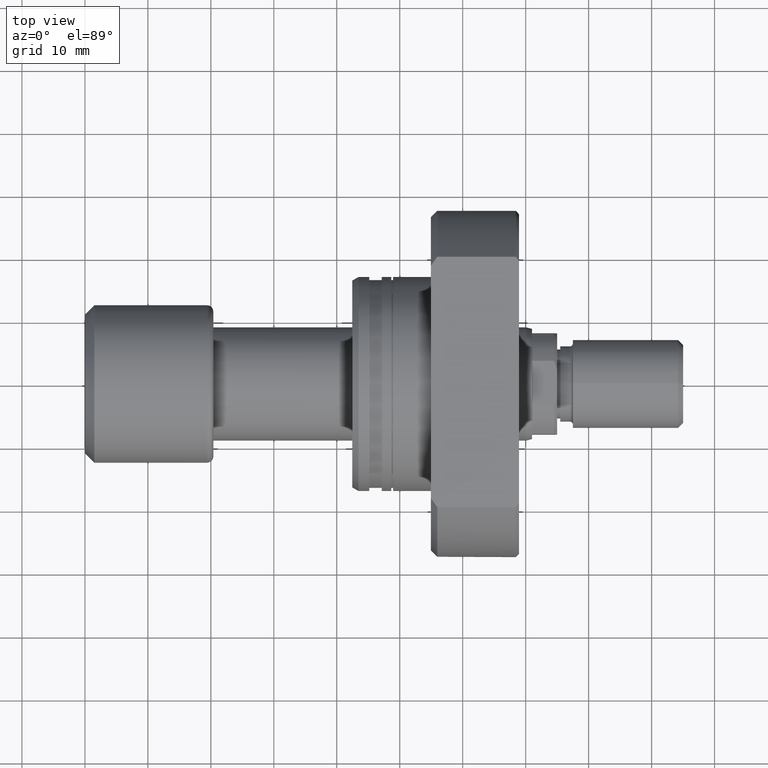
[diagram: clean part render]
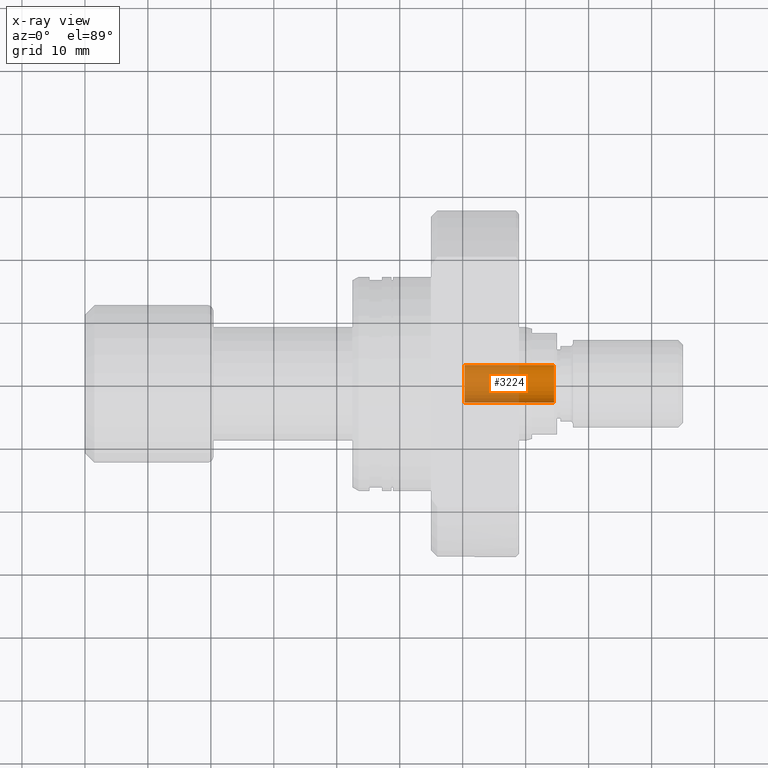
[diagram: x-ray — body ghosted, one internal face saturated and labeled with its STEP entity id]
A machine part, top view, then the same camera in x-ray: the body is ghosted and one INTERNAL B-rep face — a face not visible from any outside direction — is saturated and labeled: STEP entity #3224.
In plain terms, the highlighted cylindrical surface (edge-blend (fillet) strip) has radius 3 mm, axis along (1, -0, 0).
Its self-contained STEP definition (entity closure, byte-faithful):
#55 = CARTESIAN_POINT ( 'NONE',  ( 60.30000000000004690, 2.999999999999364508, 0.000000000000000000 ) ) ;
#75 = LINE ( 'NONE', #55, #1504 ) ;
#325 = DIRECTION ( 'NONE',  ( 1.000000000000000000, -1.657264799492254606E-14, 0.000000000000000000 ) ) ;
#326 = CARTESIAN_POINT ( 'NONE',  ( 60.29999999999994742, -3.000000000001362910, 3.673940397442505574E-16 ) ) ;
#426 = DIRECTION ( 'NONE',  ( 1.619075244244823791E-14, 1.000000000000000000, 0.000000000000000000 ) ) ;
#596 = AXIS2_PLACEMENT_3D ( 'NONE', #609, #325, #2899 ) ;
#609 = CARTESIAN_POINT ( 'NONE',  ( 74.50000000000012790, -1.234662275621713888E-12, 0.000000000000000000 ) ) ;
#798 = CARTESIAN_POINT ( 'NONE',  ( 74.50000000000017053, 2.999999999999129141, 0.000000000000000000 ) ) ;
#880 = CARTESIAN_POINT ( 'NONE',  ( 60.29999999999999716, -9.993306740938150862E-13, 0.000000000000000000 ) ) ;
#965 = DIRECTION ( 'NONE',  ( 1.000000000000000000, -1.657264799492230625E-14, -0.000000000000000000 ) ) ;
#985 = DIRECTION ( 'NONE',  ( 1.000000000000000000, -1.657264799492230625E-14, 0.000000000000000000 ) ) ;
#1177 = ORIENTED_EDGE ( 'NONE', *, *, #2544, .F. ) ;
#1227 = CARTESIAN_POINT ( 'NONE',  ( 74.50000000000007105, -3.000000000001598721, 3.673940397442650035E-16 ) ) ;
#1229 = ORIENTED_EDGE ( 'NONE', *, *, #1545, .F. ) ;
#1325 = VECTOR ( 'NONE', #2560, 1000.000000000000000 ) ;
#1504 = VECTOR ( 'NONE', #965, 1000.000000000000000 ) ;
#1544 = DIRECTION ( 'NONE',  ( 1.000000000000000000, -1.657264799492230625E-14, -0.000000000000000000 ) ) ;
#1545 = EDGE_CURVE ( 'NONE', #1712, #2553, #3321, .T. ) ;
#1571 = AXIS2_PLACEMENT_3D ( 'NONE', #880, #985, #1762 ) ;
#1666 = VERTEX_POINT ( 'NONE', #1227 ) ;
#1712 = VERTEX_POINT ( 'NONE', #326 ) ;
#1762 = DIRECTION ( 'NONE',  ( 1.619075244244823791E-14, 1.000000000000000000, 0.000000000000000000 ) ) ;
#1850 = CARTESIAN_POINT ( 'NONE',  ( 60.29999999999999716, -9.993306740938150862E-13, 0.000000000000000000 ) ) ;
#1940 = EDGE_LOOP ( 'NONE', ( #1229, #2310, #3015, #1177 ) ) ;
#1972 = LINE ( 'NONE', #2525, #1325 ) ;
#2046 = CIRCLE ( 'NONE', #596, 3.000000000000363709 ) ;
#2190 = CYLINDRICAL_SURFACE ( 'NONE', #3162, 3.000000000000363709 ) ;
#2310 = ORIENTED_EDGE ( 'NONE', *, *, #2893, .T. ) ;
#2415 = FACE_OUTER_BOUND ( 'NONE', #1940, .T. ) ;
#2525 = CARTESIAN_POINT ( 'NONE',  ( 60.29999999999994742, -3.000000000001362910, 3.673940397442505574E-16 ) ) ;
#2544 = EDGE_CURVE ( 'NONE', #2553, #2908, #75, .T. ) ;
#2553 = VERTEX_POINT ( 'NONE', #2890 ) ;
#2560 = DIRECTION ( 'NONE',  ( 1.000000000000000000, -1.657264799492230625E-14, -0.000000000000000000 ) ) ;
#2890 = CARTESIAN_POINT ( 'NONE',  ( 60.30000000000004690, 2.999999999999364508, 0.000000000000000000 ) ) ;
#2893 = EDGE_CURVE ( 'NONE', #1712, #1666, #1972, .T. ) ;
#2899 = DIRECTION ( 'NONE',  ( -1.850371707708369777E-14, -1.000000000000000000, 0.000000000000000000 ) ) ;
#2908 = VERTEX_POINT ( 'NONE', #798 ) ;
#3015 = ORIENTED_EDGE ( 'NONE', *, *, #3559, .T. ) ;
#3162 = AXIS2_PLACEMENT_3D ( 'NONE', #1850, #1544, #426 ) ;
#3224 = ADVANCED_FACE ( 'NONE', ( #2415 ), #2190, .F. ) ;
#3321 = CIRCLE ( 'NONE', #1571, 3.000000000000363709 ) ;
#3559 = EDGE_CURVE ( 'NONE', #1666, #2908, #2046, .T. ) ;